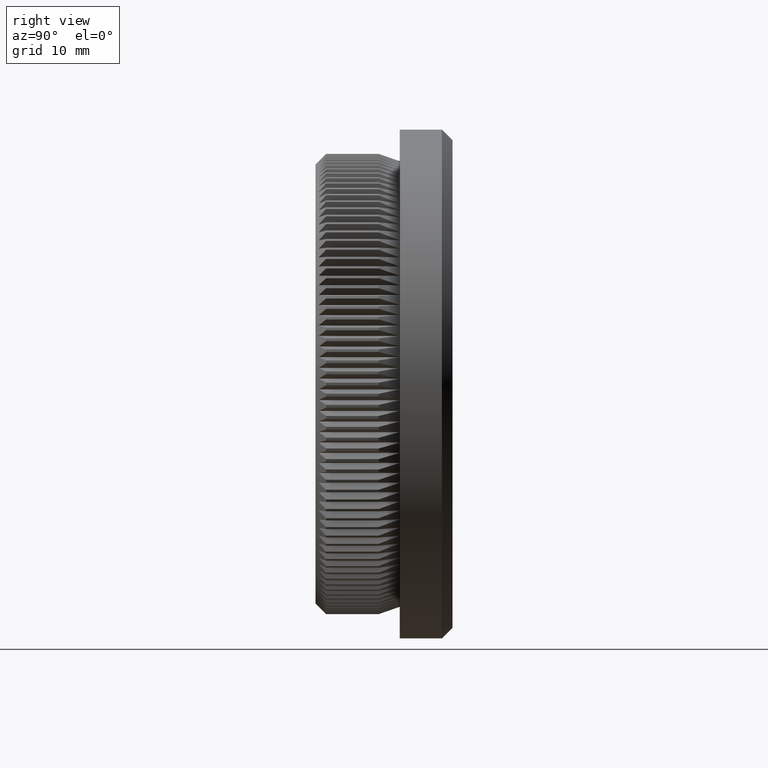
[diagram: clean part render]
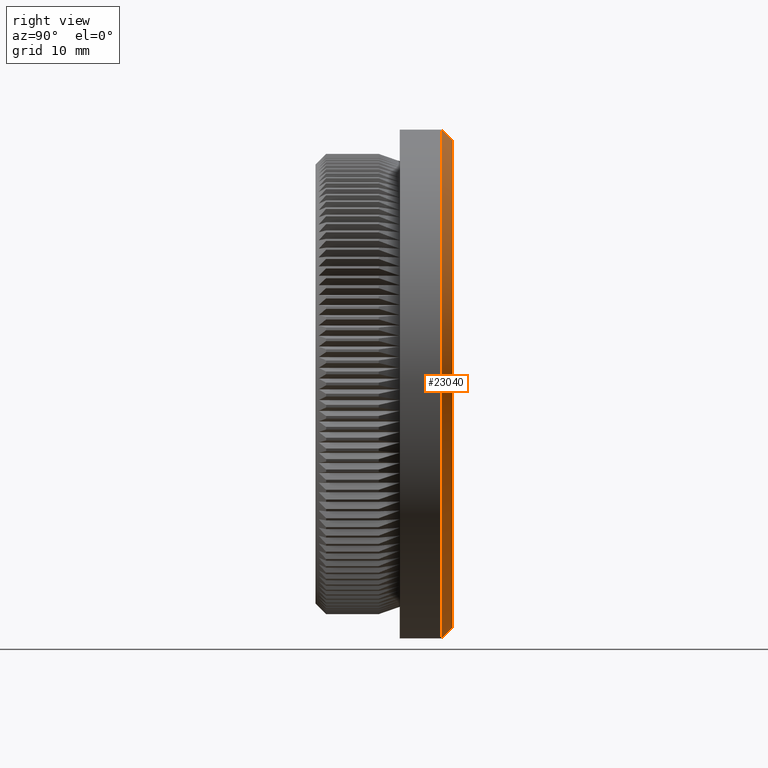
[diagram: same view with one face highlighted and labeled with its STEP entity id]
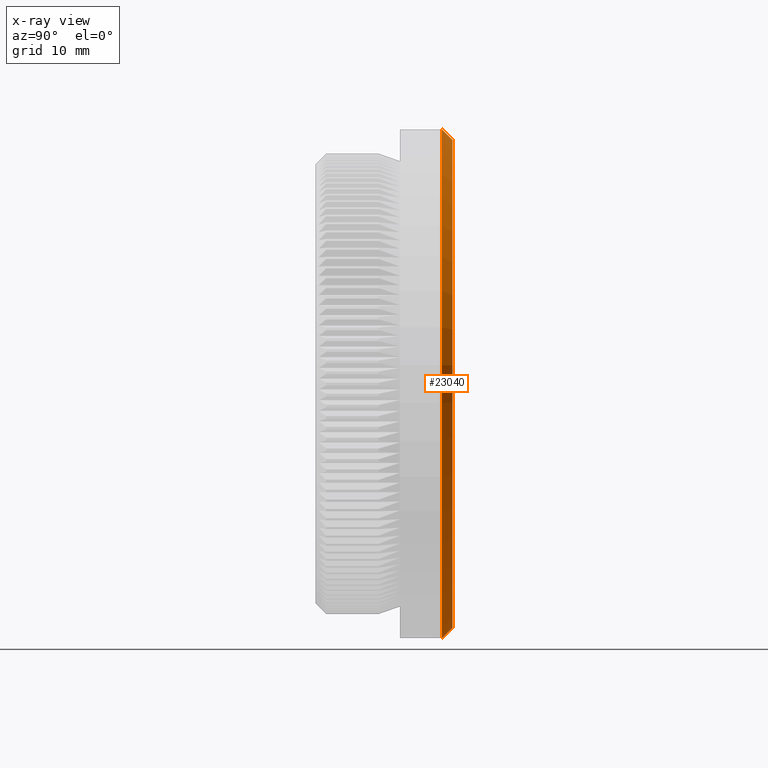
[diagram: x-ray of the same camera — body ghosted, the highlighted face saturated]
A machine part, right view. The second image highlights one B-rep face of the part: STEP entity #23040.
The next image is the same camera in x-ray: the body ghosted, the highlighted face saturated — about 0% of this face is hidden behind the body in this view.
In plain terms, the highlighted conical surface has half-angle 45 deg.
Its self-contained STEP definition (entity closure, byte-faithful):
#270 = AXIS2_PLACEMENT_3D ( 'NONE', #16623, #28166, #21209 ) ;
#542 = VERTEX_POINT ( 'NONE', #30136 ) ;
#1814 = DIRECTION ( 'NONE',  ( 0.0000000000000000000, 0.0000000000000000000, -1.000000000000000000 ) ) ;
#2876 = VECTOR ( 'NONE', #5936, 1000.000000000000000 ) ;
#3101 = ORIENTED_EDGE ( 'NONE', *, *, #29145, .T. ) ;
#5275 = FACE_OUTER_BOUND ( 'NONE', #7042, .T. ) ;
#5936 = DIRECTION ( 'NONE',  ( 0.0000000000000000000, -0.7071067811865487900, -0.7071067811865463500 ) ) ;
#5948 = CARTESIAN_POINT ( 'NONE',  ( 0.0000000000000000000, 13.00000000000000000, 0.0000000000000000000 ) ) ;
#6006 = EDGE_CURVE ( 'NONE', #8929, #7289, #8000, .T. ) ;
#6916 = LINE ( 'NONE', #17213, #23619 ) ;
#7042 = EDGE_LOOP ( 'NONE', ( #8571, #3101, #20596, #29308 ) ) ;
#7289 = VERTEX_POINT ( 'NONE', #9903 ) ;
#8000 = LINE ( 'NONE', #15057, #2876 ) ;
#8199 = CONICAL_SURFACE ( 'NONE', #25872, 24.14999999999999900, 0.7853981633974466100 ) ;
#8571 = ORIENTED_EDGE ( 'NONE', *, *, #10946, .F. ) ;
#8929 = VERTEX_POINT ( 'NONE', #29047 ) ;
#9903 = CARTESIAN_POINT ( 'NONE',  ( 0.0000000000000000000, 11.99999999999999500, -24.14999999999999900 ) ) ;
#10250 = VERTEX_POINT ( 'NONE', #30232 ) ;
#10946 = EDGE_CURVE ( 'NONE', #10250, #8929, #19397, .T. ) ;
#12937 = DIRECTION ( 'NONE',  ( 0.0000000000000000000, 1.000000000000000000, 0.0000000000000000000 ) ) ;
#14573 = DIRECTION ( 'NONE',  ( 8.659560562354918100E-017, -0.7071067811865487900, 0.7071067811865463500 ) ) ;
#15057 = CARTESIAN_POINT ( 'NONE',  ( 0.0000000000000000000, 11.99999999999999500, -24.14999999999999900 ) ) ;
#15335 = AXIS2_PLACEMENT_3D ( 'NONE', #5948, #12937, #26178 ) ;
#16623 = CARTESIAN_POINT ( 'NONE',  ( 0.0000000000000000000, 11.99999999999999500, 0.0000000000000000000 ) ) ;
#17213 = CARTESIAN_POINT ( 'NONE',  ( 2.957522019940857900E-015, 11.99999999999999500, 24.14999999999999900 ) ) ;
#17650 = EDGE_CURVE ( 'NONE', #7289, #542, #29804, .T. ) ;
#19397 = CIRCLE ( 'NONE', #15335, 23.14999999999999900 ) ;
#20596 = ORIENTED_EDGE ( 'NONE', *, *, #17650, .F. ) ;
#21209 = DIRECTION ( 'NONE',  ( 0.0000000000000000000, 0.0000000000000000000, 1.000000000000000000 ) ) ;
#23040 = ADVANCED_FACE ( 'NONE', ( #5275 ), #8199, .T. ) ;
#23619 = VECTOR ( 'NONE', #14573, 1000.000000000000000 ) ;
#25872 = AXIS2_PLACEMENT_3D ( 'NONE', #29802, #27649, #1814 ) ;
#26178 = DIRECTION ( 'NONE',  ( 0.0000000000000000000, 0.0000000000000000000, 1.000000000000000000 ) ) ;
#27649 = DIRECTION ( 'NONE',  ( -0.0000000000000000000, -1.000000000000000000, -0.0000000000000000000 ) ) ;
#28166 = DIRECTION ( 'NONE',  ( -0.0000000000000000000, -1.000000000000000000, -0.0000000000000000000 ) ) ;
#29047 = CARTESIAN_POINT ( 'NONE',  ( 0.0000000000000000000, 13.00000000000000000, -23.14999999999999900 ) ) ;
#29145 = EDGE_CURVE ( 'NONE', #10250, #542, #6916, .T. ) ;
#29308 = ORIENTED_EDGE ( 'NONE', *, *, #6006, .F. ) ;
#29802 = CARTESIAN_POINT ( 'NONE',  ( 0.0000000000000000000, 11.99999999999999500, 0.0000000000000000000 ) ) ;
#29804 = CIRCLE ( 'NONE', #270, 24.14999999999999900 ) ;
#30136 = CARTESIAN_POINT ( 'NONE',  ( 2.957522019940857900E-015, 11.99999999999999500, 24.14999999999999900 ) ) ;
#30232 = CARTESIAN_POINT ( 'NONE',  ( 2.896289679983490000E-015, 13.00000000000000000, 23.14999999999999900 ) ) ;